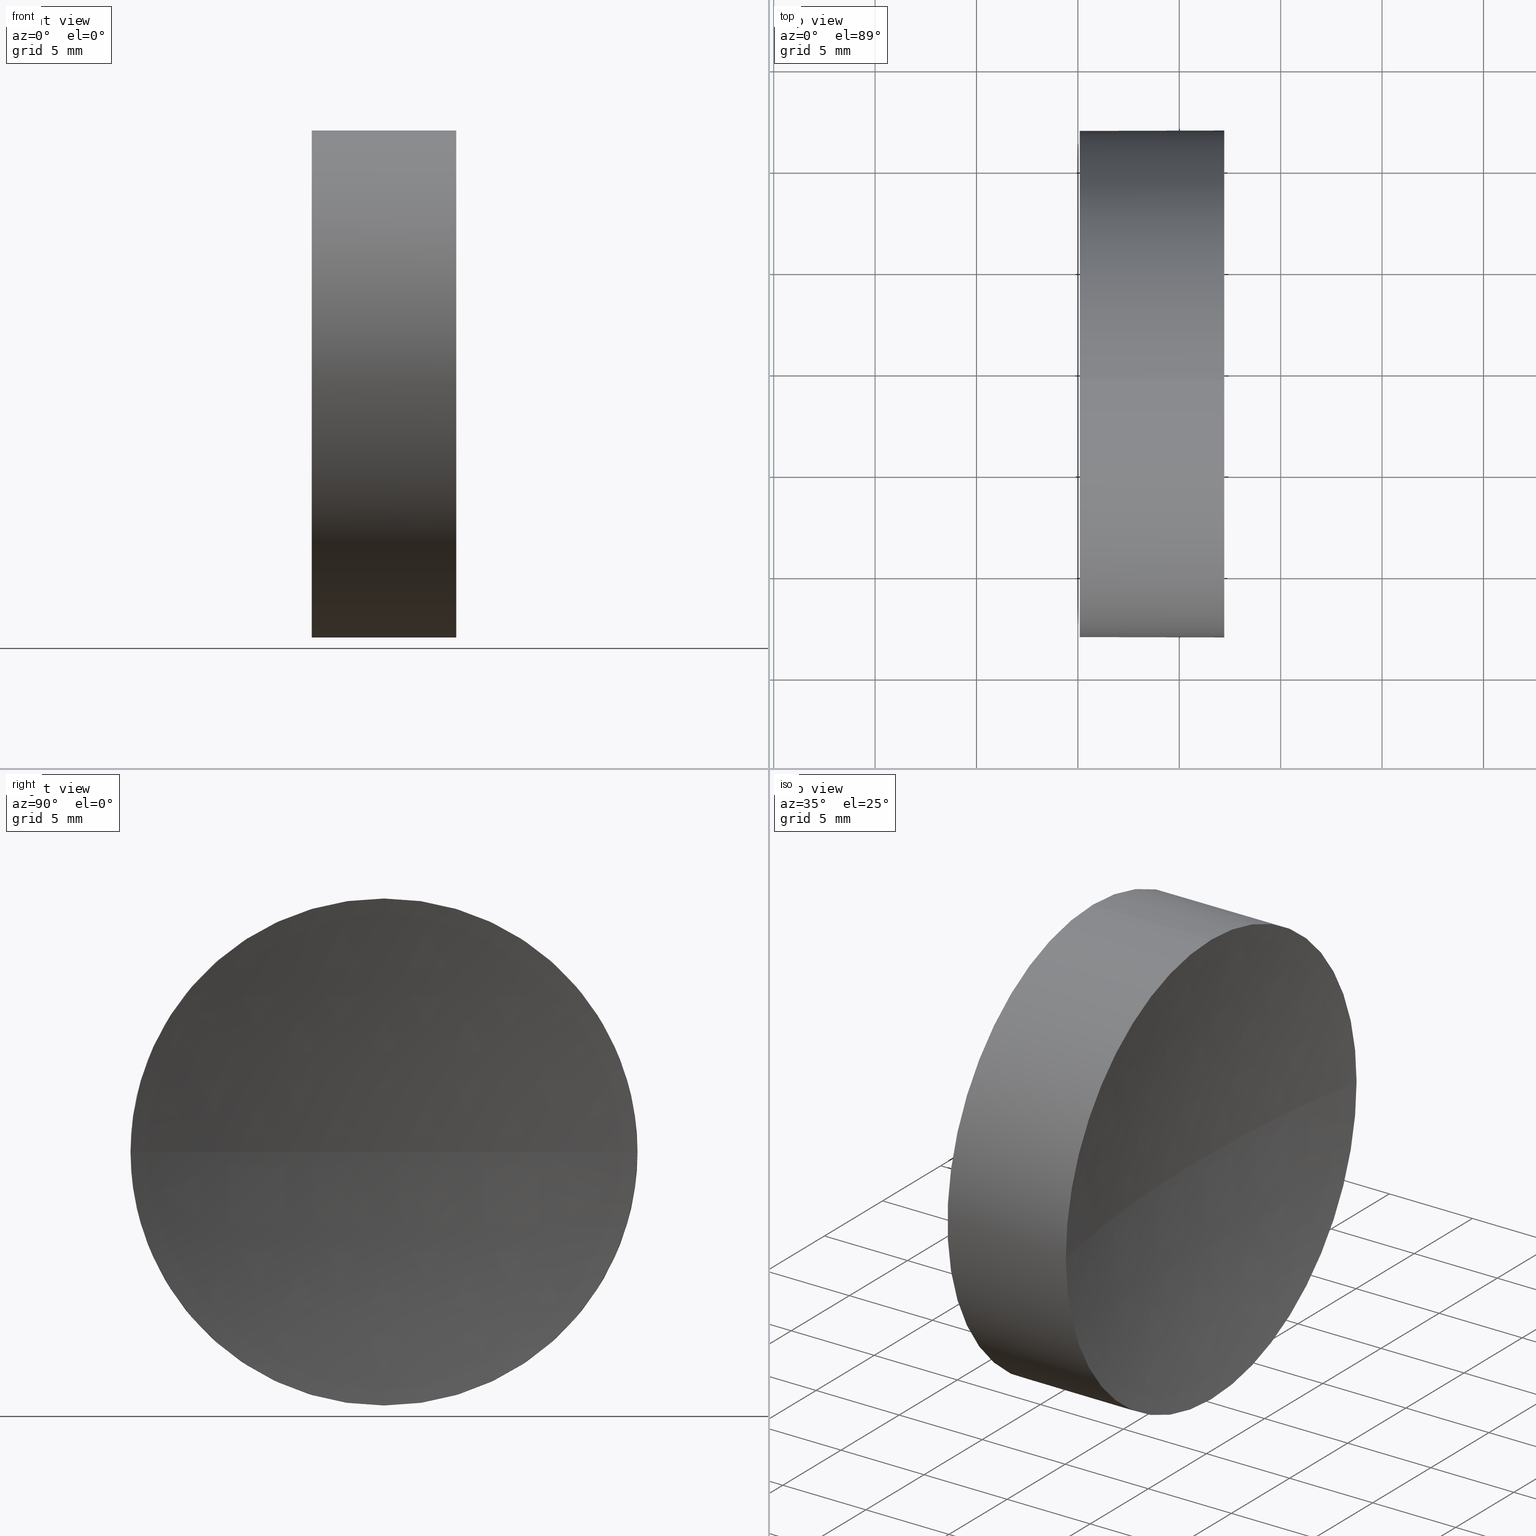
[diagram: canonical four-view strip — front | top / right | iso, engineering-drawing reading convention]
A machine part, canonical four-view strip (front | top / right | iso — engineering-drawing reading convention). The complete STEP part file that produces these views, byte-faithful:
ISO-10303-21;
HEADER;
FILE_DESCRIPTION (( 'STEP AP214' ),
    '1' );
FILE_NAME ('270023.STEP',
    '2019-07-22T06:19:44',
    ( '' ),
    ( '' ),
    'SwSTEP 2.0',
    'SolidWorks 2016',
    '' );
FILE_SCHEMA (( 'AUTOMOTIVE_DESIGN' ));
ENDSEC;

DATA;
#1 = ADVANCED_FACE ( 'NONE', ( #138 ), #97, .F. ) ;
#2 = EDGE_CURVE ( 'NONE', #163, #71, #20, .T. ) ;
#3 = EDGE_LOOP ( 'NONE', ( #43, #7, #136, #152 ) ) ;
#4 = MANIFOLD_SOLID_BREP ( '��ת1', #57 ) ;
#5 = CARTESIAN_POINT ( 'NONE',  ( 191.0926555310580000, 69.37802112337244900, 0.0000000000000000000 ) ) ;
#6 = PRESENTATION_LAYER_ASSIGNMENT (  '', '', ( #184 ) ) ;
#7 = ORIENTED_EDGE ( 'NONE', *, *, #64, .F. ) ;
#8 = CARTESIAN_POINT ( 'NONE',  ( 115.0926555349195200, 69.37802112337243400, -12.49999999999999600 ) ) ;
#9 = DIRECTION ( 'NONE',  ( 0.0000000000000000000, 0.0000000000000000000, 1.000000000000000000 ) ) ;
#10 = DIRECTION ( 'NONE',  ( 0.0000000000000000000, 0.0000000000000000000, -1.000000000000000000 ) ) ;
#11 = CARTESIAN_POINT ( 'NONE',  ( 115.0926555349195200, 69.37802112337243400, 12.49999999999999600 ) ) ;
#12 = AXIS2_PLACEMENT_3D ( 'NONE', #178, #38, #128 ) ;
#13 =( LENGTH_UNIT ( ) NAMED_UNIT ( * ) SI_UNIT ( .MILLI., .METRE. ) );
#14 = FACE_OUTER_BOUND ( 'NONE', #102, .T. ) ;
#15 = ORIENTED_EDGE ( 'NONE', *, *, #64, .T. ) ;
#16 = AXIS2_PLACEMENT_3D ( 'NONE', #50, #171, #142 ) ;
#17 = DIRECTION ( 'NONE',  ( 0.0000000000000000000, 0.0000000000000000000, 1.000000000000000000 ) ) ;
#18 = AXIS2_PLACEMENT_3D ( 'NONE', #52, #93, #141 ) ;
#19 = CARTESIAN_POINT ( 'NONE',  ( 108.9851430021651000, 69.37802112337243400, 12.50000000000001100 ) ) ;
#20 = CIRCLE ( 'NONE', #157, 12.50000000000002500 ) ;
#21 = DIRECTION ( 'NONE',  ( 0.0000000000000000000, 0.0000000000000000000, 1.000000000000000000 ) ) ;
#22 = DIRECTION ( 'NONE',  ( 1.000000000000000000, 0.0000000000000000000, 0.0000000000000000000 ) ) ;
#23 = VERTEX_POINT ( 'NONE', #8 ) ;
#24 = CARTESIAN_POINT ( 'NONE',  ( 191.0926555310580000, 69.37802112337244900, 0.0000000000000000000 ) ) ;
#25 = DIRECTION ( 'NONE',  ( -1.000000000000000000, -0.0000000000000000000, -0.0000000000000000000 ) ) ;
#26 = PRODUCT ( '270023', '270023', '', ( #65 ) ) ;
#27 = MECHANICAL_DESIGN_GEOMETRIC_PRESENTATION_REPRESENTATION (  '', ( #184 ), #31 ) ;
#28 = AXIS2_PLACEMENT_3D ( 'NONE', #77, #121, #46 ) ;
#29 = CIRCLE ( 'NONE', #180, 69.99999999999998600 ) ;
#30 = VERTEX_POINT ( 'NONE', #154 ) ;
#31 =( GEOMETRIC_REPRESENTATION_CONTEXT ( 3 ) GLOBAL_UNCERTAINTY_ASSIGNED_CONTEXT ( ( #69 ) ) GLOBAL_UNIT_ASSIGNED_CONTEXT ( ( #49, #124, #111 ) ) REPRESENTATION_CONTEXT ( 'NONE', 'WORKASPACE' ) );
#32 = DIRECTION ( 'NONE',  ( 0.0000000000000000000, 0.0000000000000000000, 1.000000000000000000 ) ) ;
#33 = ORIENTED_EDGE ( 'NONE', *, *, #89, .F. ) ;
#34 = CARTESIAN_POINT ( 'NONE',  ( 122.2177689612784500, 69.37802112337243400, 0.0000000000000000000 ) ) ;
#35 = SURFACE_SIDE_STYLE ('',( #175 ) ) ;
#36 = ORIENTED_EDGE ( 'NONE', *, *, #2, .T. ) ;
#37 = APPLICATION_PROTOCOL_DEFINITION ( 'draft international standard', 'automotive_design', 1998, #169 ) ;
#38 = DIRECTION ( 'NONE',  ( -1.000000000000000000, -0.0000000000000000000, -0.0000000000000000000 ) ) ;
#39 = DIRECTION ( 'NONE',  ( 1.000000000000000000, 0.0000000000000000000, 0.0000000000000000000 ) ) ;
#40 = DIRECTION ( 'NONE',  ( 0.0000000000000000000, -1.000000000000000000, -1.224646799147353200E-016 ) ) ;
#41 = ORIENTED_EDGE ( 'NONE', *, *, #72, .F. ) ;
#42 = PRESENTATION_STYLE_ASSIGNMENT (( #114 ) ) ;
#43 = ORIENTED_EDGE ( 'NONE', *, *, #103, .F. ) ;
#44 = AXIS2_PLACEMENT_3D ( 'NONE', #5, #17, #149 ) ;
#45 = CIRCLE ( 'NONE', #75, 12.49999999999999600 ) ;
#46 = DIRECTION ( 'NONE',  ( 0.0000000000000000000, 0.0000000000000000000, 1.000000000000000000 ) ) ;
#47 = VECTOR ( 'NONE', #25, 1000.000000000000000 ) ;
#48 = CARTESIAN_POINT ( 'NONE',  ( 0.0000000000000000000, 0.0000000000000000000, 0.0000000000000000000 ) ) ;
#49 =( LENGTH_UNIT ( ) NAMED_UNIT ( * ) SI_UNIT ( .MILLI., .METRE. ) );
#50 = CARTESIAN_POINT ( 'NONE',  ( 191.0926555310580000, 69.37802112337244900, 0.0000000000000000000 ) ) ;
#51 = PRODUCT_DEFINITION ( 'δ֪', '', #130, #126 ) ;
#52 = CARTESIAN_POINT ( 'NONE',  ( 115.0926555349195200, 69.37802112337243400, 0.0000000000000000000 ) ) ;
#53 = EDGE_CURVE ( 'NONE', #87, #173, #70, .T. ) ;
#54 = APPLICATION_PROTOCOL_DEFINITION ( 'draft international standard', 'automotive_design', 1998, #143 ) ;
#55 = PRESENTATION_LAYER_ASSIGNMENT (  '', '', ( #125 ) ) ;
#56 = CIRCLE ( 'NONE', #58, 69.99999999999998600 ) ;
#57 = CLOSED_SHELL ( 'NONE', ( #84, #160, #1, #131, #186 ) ) ;
#58 = AXIS2_PLACEMENT_3D ( 'NONE', #24, #66, #40 ) ;
#59 = DIRECTION ( 'NONE',  ( -1.000000000000000000, -0.0000000000000000000, -0.0000000000000000000 ) ) ;
#60 = ORIENTED_EDGE ( 'NONE', *, *, #103, .T. ) ;
#61 = AXIS2_PLACEMENT_3D ( 'NONE', #48, #9, #22 ) ;
#62 = CARTESIAN_POINT ( 'NONE',  ( 122.2177689612784500, 56.87802112337244200, 0.0000000000000000000 ) ) ;
#63 =( NAMED_UNIT ( * ) SI_UNIT ( $, .STERADIAN. ) SOLID_ANGLE_UNIT ( ) );
#64 = EDGE_CURVE ( 'NONE', #87, #163, #127, .T. ) ;
#65 = PRODUCT_CONTEXT ( 'NONE', #169, 'mechanical' ) ;
#66 = DIRECTION ( 'NONE',  ( 0.0000000000000000000, -1.224646799147353200E-016, 1.000000000000000000 ) ) ;
#67 = AXIS2_PLACEMENT_3D ( 'NONE', #167, #181, #155 ) ;
#68 = SHAPE_DEFINITION_REPRESENTATION ( #148, #98 ) ;
#69 = UNCERTAINTY_MEASURE_WITH_UNIT (LENGTH_MEASURE( 1.000000000000000100E-005 ), #49, 'distance_accuracy_value', 'NONE');
#70 = LINE ( 'NONE', #19, #176 ) ;
#71 = VERTEX_POINT ( 'NONE', #104 ) ;
#72 = EDGE_CURVE ( 'NONE', #71, #74, #115, .T. ) ;
#73 =( LENGTH_UNIT ( ) NAMED_UNIT ( * ) SI_UNIT ( .MILLI., .METRE. ) );
#74 = VERTEX_POINT ( 'NONE', #62 ) ;
#75 = AXIS2_PLACEMENT_3D ( 'NONE', #109, #168, #179 ) ;
#76 = CARTESIAN_POINT ( 'NONE',  ( 122.2177689612784500, 69.37802112337243400, 0.0000000000000000000 ) ) ;
#77 = CARTESIAN_POINT ( 'NONE',  ( 108.9851430021651000, 69.37802112337243400, 0.0000000000000000000 ) ) ;
#78 = PRESENTATION_STYLE_ASSIGNMENT (( #151 ) ) ;
#79 = CARTESIAN_POINT ( 'NONE',  ( 122.2177689612784500, 69.37802112337243400, 12.50000000000002500 ) ) ;
#80 = FILL_AREA_STYLE ('',( #156 ) ) ;
#81 = EDGE_CURVE ( 'NONE', #23, #173, #82, .T. ) ;
#82 = CIRCLE ( 'NONE', #18, 12.49999999999999600 ) ;
#83 = ORIENTED_EDGE ( 'NONE', *, *, #147, .T. ) ;
#84 = ADVANCED_FACE ( 'NONE', ( #14 ), #172, .T. ) ;
#85 = COLOUR_RGB ( '',1.000000000000000000, 1.000000000000000000, 1.000000000000000000 ) ;
#86 = AXIS2_PLACEMENT_3D ( 'NONE', #95, #39, #158 ) ;
#87 = VERTEX_POINT ( 'NONE', #79 ) ;
#88 = FILL_AREA_STYLE_COLOUR ( '', #161 ) ;
#89 = EDGE_CURVE ( 'NONE', #173, #23, #45, .T. ) ;
#90 =( NAMED_UNIT ( * ) PLANE_ANGLE_UNIT ( ) SI_UNIT ( $, .RADIAN. ) );
#91 = SURFACE_SIDE_STYLE ('',( #129 ) ) ;
#92 = ORIENTED_EDGE ( 'NONE', *, *, #53, .F. ) ;
#93 = DIRECTION ( 'NONE',  ( -1.000000000000000000, -0.0000000000000000000, -0.0000000000000000000 ) ) ;
#94 = CARTESIAN_POINT ( 'NONE',  ( 122.2177689612784500, 81.87802112337244900, 1.530808498934190300E-015 ) ) ;
#95 = CARTESIAN_POINT ( 'NONE',  ( 115.0926555349195200, 69.37802112337243400, 0.0000000000000000000 ) ) ;
#96 = CYLINDRICAL_SURFACE ( 'NONE', #67, 12.50000000000001100 ) ;
#97 = SPHERICAL_SURFACE ( 'NONE', #44, 69.99999999999998600 ) ;
#98 = ADVANCED_BREP_SHAPE_REPRESENTATION ( '270023', ( #4, #61 ), #174 ) ;
#99 = PRODUCT_RELATED_PRODUCT_CATEGORY ( 'part', '', ( #26 ) ) ;
#100 = ORIENTED_EDGE ( 'NONE', *, *, #162, .T. ) ;
#101 = SPHERICAL_SURFACE ( 'NONE', #16, 69.99999999999998600 ) ;
#102 = EDGE_LOOP ( 'NONE', ( #36, #83, #33, #92, #15 ) ) ;
#103 = EDGE_CURVE ( 'NONE', #163, #30, #56, .T. ) ;
#104 = CARTESIAN_POINT ( 'NONE',  ( 122.2177689612784500, 69.37802112337243400, -12.50000000000002500 ) ) ;
#105 = EDGE_LOOP ( 'NONE', ( #113, #145, #100, #144, #133 ) ) ;
#106 = DIRECTION ( 'NONE',  ( -1.000000000000000000, -0.0000000000000000000, -0.0000000000000000000 ) ) ;
#107 = FILL_AREA_STYLE ('',( #88 ) ) ;
#108 = CARTESIAN_POINT ( 'NONE',  ( 122.2177689612784500, 69.37802112337243400, 0.0000000000000000000 ) ) ;
#109 = CARTESIAN_POINT ( 'NONE',  ( 115.0926555349195200, 69.37802112337243400, 0.0000000000000000000 ) ) ;
#110 = DIRECTION ( 'NONE',  ( -1.000000000000000000, 0.0000000000000000000, 0.0000000000000000000 ) ) ;
#111 =( NAMED_UNIT ( * ) SI_UNIT ( $, .STERADIAN. ) SOLID_ANGLE_UNIT ( ) );
#112 = FACE_OUTER_BOUND ( 'NONE', #105, .T. ) ;
#113 = ORIENTED_EDGE ( 'NONE', *, *, #147, .F. ) ;
#114 = SURFACE_STYLE_USAGE ( .BOTH. , #91 ) ;
#115 = CIRCLE ( 'NONE', #150, 12.50000000000002500 ) ;
#116 = UNCERTAINTY_MEASURE_WITH_UNIT (LENGTH_MEASURE( 1.000000000000000100E-005 ), #13, 'distance_accuracy_value', 'NONE');
#117 = EDGE_CURVE ( 'NONE', #74, #30, #29, .T. ) ;
#118 = LINE ( 'NONE', #140, #47 ) ;
#119 = ORIENTED_EDGE ( 'NONE', *, *, #117, .F. ) ;
#120 = CIRCLE ( 'NONE', #12, 12.50000000000002500 ) ;
#121 = DIRECTION ( 'NONE',  ( -1.000000000000000000, -0.0000000000000000000, -0.0000000000000000000 ) ) ;
#122 = FACE_OUTER_BOUND ( 'NONE', #146, .T. ) ;
#123 = EDGE_LOOP ( 'NONE', ( #177, #183 ) ) ;
#124 =( NAMED_UNIT ( * ) PLANE_ANGLE_UNIT ( ) SI_UNIT ( $, .RADIAN. ) );
#125 = STYLED_ITEM ( 'NONE', ( #78 ), #4 ) ;
#126 = PRODUCT_DEFINITION_CONTEXT ( 'detailed design', #143, 'design' ) ;
#127 = CIRCLE ( 'NONE', #170, 12.50000000000002500 ) ;
#128 = DIRECTION ( 'NONE',  ( 0.0000000000000000000, 0.0000000000000000000, 1.000000000000000000 ) ) ;
#129 = SURFACE_STYLE_FILL_AREA ( #80 ) ;
#130 = PRODUCT_DEFINITION_FORMATION_WITH_SPECIFIED_SOURCE ( '�κ�', '', #26, .NOT_KNOWN. ) ;
#131 = ADVANCED_FACE ( 'NONE', ( #112 ), #96, .T. ) ;
#132 = FACE_OUTER_BOUND ( 'NONE', #123, .T. ) ;
#133 = ORIENTED_EDGE ( 'NONE', *, *, #81, .F. ) ;
#134 = UNCERTAINTY_MEASURE_WITH_UNIT (LENGTH_MEASURE( 1.000000000000000100E-005 ), #73, 'distance_accuracy_value', 'NONE');
#135 =( GEOMETRIC_REPRESENTATION_CONTEXT ( 3 ) GLOBAL_UNCERTAINTY_ASSIGNED_CONTEXT ( ( #134 ) ) GLOBAL_UNIT_ASSIGNED_CONTEXT ( ( #73, #153, #139 ) ) REPRESENTATION_CONTEXT ( 'NONE', 'WORKASPACE' ) );
#136 = ORIENTED_EDGE ( 'NONE', *, *, #162, .F. ) ;
#137 = DIRECTION ( 'NONE',  ( 0.0000000000000000000, 0.0000000000000000000, 1.000000000000000000 ) ) ;
#138 = FACE_OUTER_BOUND ( 'NONE', #3, .T. ) ;
#139 =( NAMED_UNIT ( * ) SI_UNIT ( $, .STERADIAN. ) SOLID_ANGLE_UNIT ( ) );
#140 = CARTESIAN_POINT ( 'NONE',  ( 108.9851430021651000, 69.37802112337243400, -12.50000000000001100 ) ) ;
#141 = DIRECTION ( 'NONE',  ( 0.0000000000000000000, 0.0000000000000000000, 1.000000000000000000 ) ) ;
#142 = DIRECTION ( 'NONE',  ( 0.0000000000000000000, -1.000000000000000000, 0.0000000000000000000 ) ) ;
#143 = APPLICATION_CONTEXT ( 'automotive_design' ) ;
#144 = ORIENTED_EDGE ( 'NONE', *, *, #53, .T. ) ;
#145 = ORIENTED_EDGE ( 'NONE', *, *, #72, .T. ) ;
#146 = EDGE_LOOP ( 'NONE', ( #185, #60, #119, #41 ) ) ;
#147 = EDGE_CURVE ( 'NONE', #71, #23, #118, .T. ) ;
#148 = PRODUCT_DEFINITION_SHAPE ( 'NONE', 'NONE',  #51 ) ;
#149 = DIRECTION ( 'NONE',  ( 0.0000000000000000000, -1.000000000000000000, 0.0000000000000000000 ) ) ;
#150 = AXIS2_PLACEMENT_3D ( 'NONE', #34, #59, #137 ) ;
#151 = SURFACE_STYLE_USAGE ( .BOTH. , #35 ) ;
#152 = ORIENTED_EDGE ( 'NONE', *, *, #117, .T. ) ;
#153 =( NAMED_UNIT ( * ) PLANE_ANGLE_UNIT ( ) SI_UNIT ( $, .RADIAN. ) );
#154 = CARTESIAN_POINT ( 'NONE',  ( 121.0926555310580100, 69.37802112337244900, 0.0000000000000000000 ) ) ;
#155 = DIRECTION ( 'NONE',  ( 0.0000000000000000000, 0.0000000000000000000, 1.000000000000000000 ) ) ;
#156 = FILL_AREA_STYLE_COLOUR ( '', #85 ) ;
#157 = AXIS2_PLACEMENT_3D ( 'NONE', #108, #166, #21 ) ;
#158 = DIRECTION ( 'NONE',  ( 0.0000000000000000000, 0.0000000000000000000, -1.000000000000000000 ) ) ;
#159 = PLANE ( 'NONE',  #86 ) ;
#160 = ADVANCED_FACE ( 'NONE', ( #122 ), #101, .F. ) ;
#161 = COLOUR_RGB ( '',1.000000000000000000, 1.000000000000000000, 1.000000000000000000 ) ;
#162 = EDGE_CURVE ( 'NONE', #74, #87, #120, .T. ) ;
#163 = VERTEX_POINT ( 'NONE', #94 ) ;
#164 = DIRECTION ( 'NONE',  ( -1.000000000000000000, -0.0000000000000000000, -0.0000000000000000000 ) ) ;
#165 = MECHANICAL_DESIGN_GEOMETRIC_PRESENTATION_REPRESENTATION (  '', ( #125 ), #135 ) ;
#166 = DIRECTION ( 'NONE',  ( -1.000000000000000000, -0.0000000000000000000, -0.0000000000000000000 ) ) ;
#167 = CARTESIAN_POINT ( 'NONE',  ( 108.9851430021651000, 69.37802112337243400, 0.0000000000000000000 ) ) ;
#168 = DIRECTION ( 'NONE',  ( -1.000000000000000000, -0.0000000000000000000, -0.0000000000000000000 ) ) ;
#169 = APPLICATION_CONTEXT ( 'automotive_design' ) ;
#170 = AXIS2_PLACEMENT_3D ( 'NONE', #76, #164, #32 ) ;
#171 = DIRECTION ( 'NONE',  ( 0.0000000000000000000, 0.0000000000000000000, 1.000000000000000000 ) ) ;
#172 = CYLINDRICAL_SURFACE ( 'NONE', #28, 12.50000000000001100 ) ;
#173 = VERTEX_POINT ( 'NONE', #11 ) ;
#174 =( GEOMETRIC_REPRESENTATION_CONTEXT ( 3 ) GLOBAL_UNCERTAINTY_ASSIGNED_CONTEXT ( ( #116 ) ) GLOBAL_UNIT_ASSIGNED_CONTEXT ( ( #13, #90, #63 ) ) REPRESENTATION_CONTEXT ( 'NONE', 'WORKASPACE' ) );
#175 = SURFACE_STYLE_FILL_AREA ( #107 ) ;
#176 = VECTOR ( 'NONE', #106, 1000.000000000000000 ) ;
#177 = ORIENTED_EDGE ( 'NONE', *, *, #89, .T. ) ;
#178 = CARTESIAN_POINT ( 'NONE',  ( 122.2177689612784500, 69.37802112337243400, 0.0000000000000000000 ) ) ;
#179 = DIRECTION ( 'NONE',  ( 0.0000000000000000000, 0.0000000000000000000, 1.000000000000000000 ) ) ;
#180 = AXIS2_PLACEMENT_3D ( 'NONE', #182, #10, #110 ) ;
#181 = DIRECTION ( 'NONE',  ( -1.000000000000000000, -0.0000000000000000000, -0.0000000000000000000 ) ) ;
#182 = CARTESIAN_POINT ( 'NONE',  ( 191.0926555310580000, 69.37802112337244900, 0.0000000000000000000 ) ) ;
#183 = ORIENTED_EDGE ( 'NONE', *, *, #81, .T. ) ;
#184 = STYLED_ITEM ( 'NONE', ( #42 ), #98 ) ;
#185 = ORIENTED_EDGE ( 'NONE', *, *, #2, .F. ) ;
#186 = ADVANCED_FACE ( 'NONE', ( #132 ), #159, .F. ) ;
ENDSEC;
END-ISO-10303-21;
